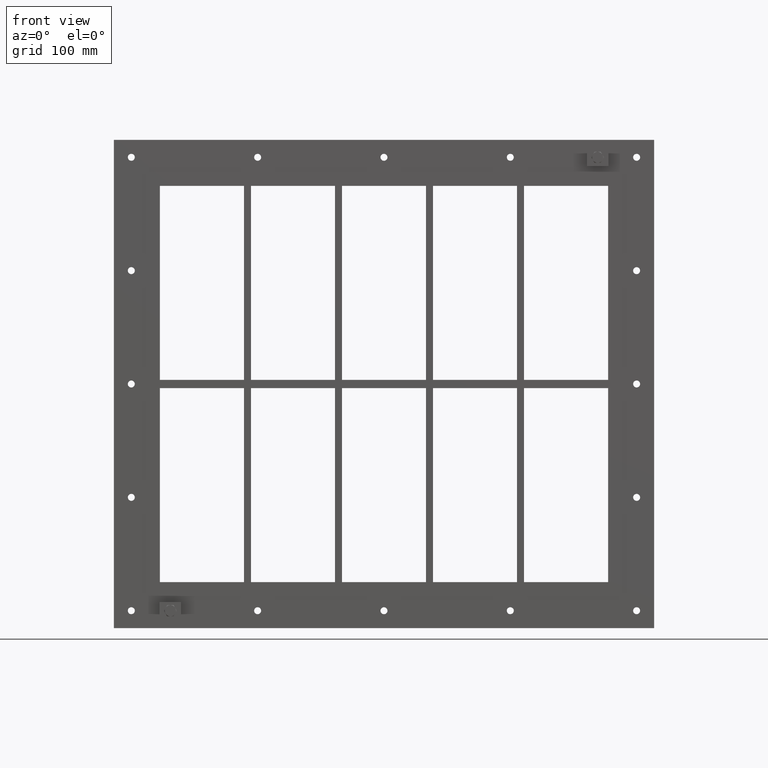
[diagram: clean part render]
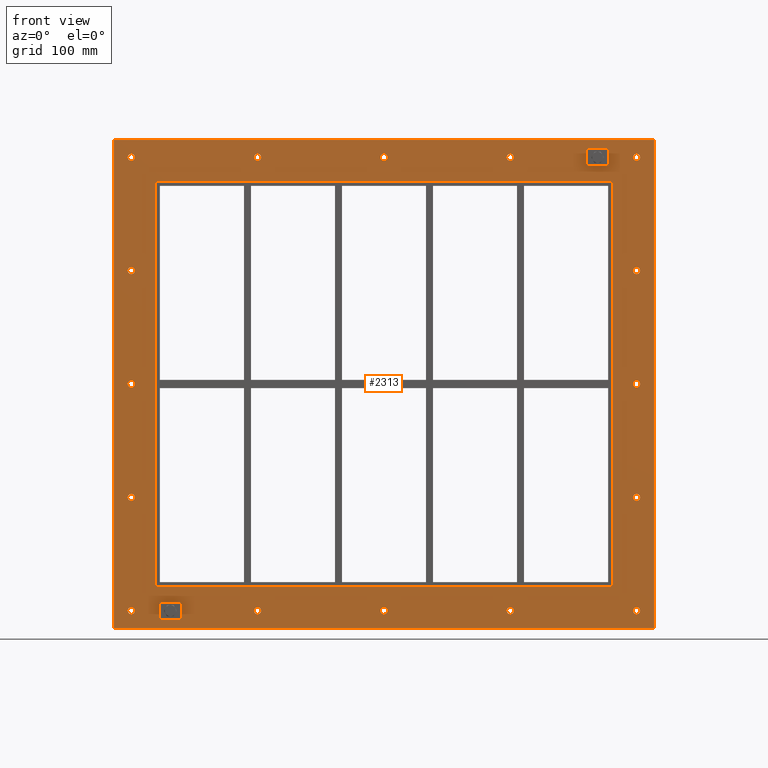
[diagram: same view with one face highlighted and labeled with its STEP entity id]
A machine part, front view. The second image highlights one B-rep face of the part: STEP entity #2313.
In plain terms, the highlighted planar face has unit normal (0, 1, 0).
Its self-contained STEP definition (entity closure, byte-faithful):
#84=CARTESIAN_POINT('',(-357.25000000000034,0.0,-324.99999999999994));
#85=VERTEX_POINT('',#84);
#86=CARTESIAN_POINT('',(-362.25000000000034,0.0,-324.99999999999994));
#87=DIRECTION('',(0.0,1.0,0.0));
#88=DIRECTION('',(1.0,0.0,0.0));
#89=AXIS2_PLACEMENT_3D('',#86,#87,#88);
#90=CIRCLE('',#89,5.0);
#91=EDGE_CURVE('',#85,#85,#90,.T.);
#112=CARTESIAN_POINT('',(367.14999999999964,0.0,-162.49999999999994));
#113=VERTEX_POINT('',#112);
#114=CARTESIAN_POINT('',(362.14999999999964,0.0,-162.49999999999994));
#115=DIRECTION('',(0.0,1.0,0.0));
#116=DIRECTION('',(1.0,0.0,0.0));
#117=AXIS2_PLACEMENT_3D('',#114,#115,#116);
#118=CIRCLE('',#117,5.0);
#119=EDGE_CURVE('',#113,#113,#118,.T.);
#140=CARTESIAN_POINT('',(-357.25000000000034,0.0,-162.49999999999994));
#141=VERTEX_POINT('',#140);
#142=CARTESIAN_POINT('',(-362.25000000000034,0.0,-162.49999999999994));
#143=DIRECTION('',(0.0,1.0,0.0));
#144=DIRECTION('',(1.0,0.0,0.0));
#145=AXIS2_PLACEMENT_3D('',#142,#143,#144);
#146=CIRCLE('',#145,5.0);
#147=EDGE_CURVE('',#141,#141,#146,.T.);
#168=CARTESIAN_POINT('',(367.14999999999964,0.0,7.105427E-014));
#169=VERTEX_POINT('',#168);
#170=CARTESIAN_POINT('',(362.14999999999964,0.0,7.105427E-014));
#171=DIRECTION('',(0.0,1.0,0.0));
#172=DIRECTION('',(1.0,0.0,0.0));
#173=AXIS2_PLACEMENT_3D('',#170,#171,#172);
#174=CIRCLE('',#173,5.0);
#175=EDGE_CURVE('',#169,#169,#174,.T.);
#196=CARTESIAN_POINT('',(-357.25000000000034,0.0,7.105427E-014));
#197=VERTEX_POINT('',#196);
#198=CARTESIAN_POINT('',(-362.25000000000034,0.0,7.105427E-014));
#199=DIRECTION('',(0.0,1.0,0.0));
#200=DIRECTION('',(1.0,0.0,0.0));
#201=AXIS2_PLACEMENT_3D('',#198,#199,#200);
#202=CIRCLE('',#201,5.0);
#203=EDGE_CURVE('',#197,#197,#202,.T.);
#224=CARTESIAN_POINT('',(367.14999999999964,0.0,162.50000000000006));
#225=VERTEX_POINT('',#224);
#226=CARTESIAN_POINT('',(362.14999999999964,0.0,162.50000000000006));
#227=DIRECTION('',(0.0,1.0,0.0));
#228=DIRECTION('',(1.0,0.0,0.0));
#229=AXIS2_PLACEMENT_3D('',#226,#227,#228);
#230=CIRCLE('',#229,5.0);
#231=EDGE_CURVE('',#225,#225,#230,.T.);
#252=CARTESIAN_POINT('',(-357.25000000000034,0.0,162.50000000000006));
#253=VERTEX_POINT('',#252);
#254=CARTESIAN_POINT('',(-362.25000000000034,0.0,162.50000000000006));
#255=DIRECTION('',(0.0,1.0,0.0));
#256=DIRECTION('',(1.0,0.0,0.0));
#257=AXIS2_PLACEMENT_3D('',#254,#255,#256);
#258=CIRCLE('',#257,5.0);
#259=EDGE_CURVE('',#253,#253,#258,.T.);
#280=CARTESIAN_POINT('',(-176.15000000000038,0.0,325.00000000000006));
#281=VERTEX_POINT('',#280);
#282=CARTESIAN_POINT('',(-181.15000000000038,0.0,325.00000000000006));
#283=DIRECTION('',(0.0,1.0,0.0));
#284=DIRECTION('',(1.0,0.0,0.0));
#285=AXIS2_PLACEMENT_3D('',#282,#283,#284);
#286=CIRCLE('',#285,5.0);
#287=EDGE_CURVE('',#281,#281,#286,.T.);
#308=CARTESIAN_POINT('',(-176.15000000000038,0.0,-324.99999999999994));
#309=VERTEX_POINT('',#308);
#310=CARTESIAN_POINT('',(-181.15000000000038,0.0,-324.99999999999994));
#311=DIRECTION('',(0.0,1.0,0.0));
#312=DIRECTION('',(1.0,0.0,0.0));
#313=AXIS2_PLACEMENT_3D('',#310,#311,#312);
#314=CIRCLE('',#313,5.0);
#315=EDGE_CURVE('',#309,#309,#314,.T.);
#336=CARTESIAN_POINT('',(4.949999999999619,0.0,325.00000000000006));
#337=VERTEX_POINT('',#336);
#338=CARTESIAN_POINT('',(-0.050000000000381,0.0,325.00000000000006));
#339=DIRECTION('',(0.0,1.0,0.0));
#340=DIRECTION('',(1.0,0.0,0.0));
#341=AXIS2_PLACEMENT_3D('',#338,#339,#340);
#342=CIRCLE('',#341,5.0);
#343=EDGE_CURVE('',#337,#337,#342,.T.);
#364=CARTESIAN_POINT('',(4.949999999999619,0.0,-324.99999999999994));
#365=VERTEX_POINT('',#364);
#366=CARTESIAN_POINT('',(-0.050000000000381,0.0,-324.99999999999994));
#367=DIRECTION('',(0.0,1.0,0.0));
#368=DIRECTION('',(1.0,0.0,0.0));
#369=AXIS2_PLACEMENT_3D('',#366,#367,#368);
#370=CIRCLE('',#369,5.0);
#371=EDGE_CURVE('',#365,#365,#370,.T.);
#392=CARTESIAN_POINT('',(186.04999999999961,0.0,325.00000000000006));
#393=VERTEX_POINT('',#392);
#394=CARTESIAN_POINT('',(181.04999999999961,0.0,325.00000000000006));
#395=DIRECTION('',(0.0,1.0,0.0));
#396=DIRECTION('',(1.0,0.0,0.0));
#397=AXIS2_PLACEMENT_3D('',#394,#395,#396);
#398=CIRCLE('',#397,5.0);
#399=EDGE_CURVE('',#393,#393,#398,.T.);
#420=CARTESIAN_POINT('',(186.04999999999961,0.0,-324.99999999999994));
#421=VERTEX_POINT('',#420);
#422=CARTESIAN_POINT('',(181.04999999999961,0.0,-324.99999999999994));
#423=DIRECTION('',(0.0,1.0,0.0));
#424=DIRECTION('',(1.0,0.0,0.0));
#425=AXIS2_PLACEMENT_3D('',#422,#423,#424);
#426=CIRCLE('',#425,5.0);
#427=EDGE_CURVE('',#421,#421,#426,.T.);
#448=CARTESIAN_POINT('',(367.14999999999964,0.0,-324.99999999999994));
#449=VERTEX_POINT('',#448);
#450=CARTESIAN_POINT('',(362.14999999999964,0.0,-324.99999999999994));
#451=DIRECTION('',(0.0,1.0,0.0));
#452=DIRECTION('',(1.0,0.0,0.0));
#453=AXIS2_PLACEMENT_3D('',#450,#451,#452);
#454=CIRCLE('',#453,5.0);
#455=EDGE_CURVE('',#449,#449,#454,.T.);
#476=CARTESIAN_POINT('',(-357.25000000000034,0.0,325.00000000000006));
#477=VERTEX_POINT('',#476);
#478=CARTESIAN_POINT('',(-362.25000000000034,0.0,325.00000000000006));
#479=DIRECTION('',(0.0,1.0,0.0));
#480=DIRECTION('',(1.0,0.0,0.0));
#481=AXIS2_PLACEMENT_3D('',#478,#479,#480);
#482=CIRCLE('',#481,5.0);
#483=EDGE_CURVE('',#477,#477,#482,.T.);
#504=CARTESIAN_POINT('',(367.14999999999964,0.0,325.00000000000006));
#505=VERTEX_POINT('',#504);
#506=CARTESIAN_POINT('',(362.14999999999964,0.0,325.00000000000006));
#507=DIRECTION('',(0.0,1.0,0.0));
#508=DIRECTION('',(1.0,0.0,0.0));
#509=AXIS2_PLACEMENT_3D('',#506,#507,#508);
#510=CIRCLE('',#509,5.0);
#511=EDGE_CURVE('',#505,#505,#510,.T.);
#2156=CARTESIAN_POINT('',(-3.469588E-014,0.0,0.0));
#2157=DIRECTION('',(0.0,1.0,0.0));
#2158=DIRECTION('',(0.0,0.0,1.0));
#2159=AXIS2_PLACEMENT_3D('',#2156,#2157,#2158);
#2160=PLANE('',#2159);
#2161=CARTESIAN_POINT('',(-387.25000000000023,0.0,349.99999999999994));
#2162=VERTEX_POINT('',#2161);
#2163=CARTESIAN_POINT('',(387.25000000000017,0.0,349.99999999999994));
#2164=VERTEX_POINT('',#2163);
#2165=CARTESIAN_POINT('',(-387.25000000000023,0.0,349.99999999999994));
#2166=DIRECTION('',(1.0,0.0,0.0));
#2167=VECTOR('',#2166,774.50000000000045);
#2168=LINE('',#2165,#2167);
#2169=EDGE_CURVE('',#2162,#2164,#2168,.T.);
#2170=ORIENTED_EDGE('',*,*,#2169,.F.);
#2171=CARTESIAN_POINT('',(-387.25000000000023,0.0,-349.99999999999994));
#2172=VERTEX_POINT('',#2171);
#2173=CARTESIAN_POINT('',(-387.25000000000023,0.0,-349.99999999999994));
#2174=DIRECTION('',(0.0,0.0,1.0));
#2175=VECTOR('',#2174,699.99999999999989);
#2176=LINE('',#2173,#2175);
#2177=EDGE_CURVE('',#2172,#2162,#2176,.T.);
#2178=ORIENTED_EDGE('',*,*,#2177,.F.);
#2179=CARTESIAN_POINT('',(387.25000000000017,0.0,-349.99999999999994));
#2180=VERTEX_POINT('',#2179);
#2181=CARTESIAN_POINT('',(387.25000000000017,0.0,-349.99999999999994));
#2182=DIRECTION('',(-1.0,0.0,0.0));
#2183=VECTOR('',#2182,774.50000000000045);
#2184=LINE('',#2181,#2183);
#2185=EDGE_CURVE('',#2180,#2172,#2184,.T.);
#2186=ORIENTED_EDGE('',*,*,#2185,.F.);
#2187=CARTESIAN_POINT('',(387.25000000000017,0.0,349.99999999999994));
#2188=DIRECTION('',(0.0,0.0,-1.0));
#2189=VECTOR('',#2188,699.99999999999989);
#2190=LINE('',#2187,#2189);
#2191=EDGE_CURVE('',#2164,#2180,#2190,.T.);
#2192=ORIENTED_EDGE('',*,*,#2191,.F.);
#2193=EDGE_LOOP('',(#2170,#2178,#2186,#2192));
#2194=FACE_OUTER_BOUND('',#2193,.T.);
#2195=ORIENTED_EDGE('',*,*,#91,.T.);
#2196=EDGE_LOOP('',(#2195));
#2197=FACE_BOUND('',#2196,.T.);
#2198=ORIENTED_EDGE('',*,*,#119,.T.);
#2199=EDGE_LOOP('',(#2198));
#2200=FACE_BOUND('',#2199,.T.);
#2201=ORIENTED_EDGE('',*,*,#147,.T.);
#2202=EDGE_LOOP('',(#2201));
#2203=FACE_BOUND('',#2202,.T.);
#2204=ORIENTED_EDGE('',*,*,#175,.T.);
#2205=EDGE_LOOP('',(#2204));
#2206=FACE_BOUND('',#2205,.T.);
#2207=ORIENTED_EDGE('',*,*,#203,.T.);
#2208=EDGE_LOOP('',(#2207));
#2209=FACE_BOUND('',#2208,.T.);
#2210=ORIENTED_EDGE('',*,*,#231,.T.);
#2211=EDGE_LOOP('',(#2210));
#2212=FACE_BOUND('',#2211,.T.);
#2213=ORIENTED_EDGE('',*,*,#259,.T.);
#2214=EDGE_LOOP('',(#2213));
#2215=FACE_BOUND('',#2214,.T.);
#2216=ORIENTED_EDGE('',*,*,#287,.T.);
#2217=EDGE_LOOP('',(#2216));
#2218=FACE_BOUND('',#2217,.T.);
#2219=ORIENTED_EDGE('',*,*,#315,.T.);
#2220=EDGE_LOOP('',(#2219));
#2221=FACE_BOUND('',#2220,.T.);
#2222=ORIENTED_EDGE('',*,*,#343,.T.);
#2223=EDGE_LOOP('',(#2222));
#2224=FACE_BOUND('',#2223,.T.);
#2225=ORIENTED_EDGE('',*,*,#371,.T.);
#2226=EDGE_LOOP('',(#2225));
#2227=FACE_BOUND('',#2226,.T.);
#2228=ORIENTED_EDGE('',*,*,#399,.T.);
#2229=EDGE_LOOP('',(#2228));
#2230=FACE_BOUND('',#2229,.T.);
#2231=ORIENTED_EDGE('',*,*,#427,.T.);
#2232=EDGE_LOOP('',(#2231));
#2233=FACE_BOUND('',#2232,.T.);
#2234=ORIENTED_EDGE('',*,*,#455,.T.);
#2235=EDGE_LOOP('',(#2234));
#2236=FACE_BOUND('',#2235,.T.);
#2237=ORIENTED_EDGE('',*,*,#483,.T.);
#2238=EDGE_LOOP('',(#2237));
#2239=FACE_BOUND('',#2238,.T.);
#2240=ORIENTED_EDGE('',*,*,#511,.T.);
#2241=EDGE_LOOP('',(#2240));
#2242=FACE_BOUND('',#2241,.T.);
#2243=CARTESIAN_POINT('',(-325.25,0.0,290.0));
#2244=VERTEX_POINT('',#2243);
#2245=CARTESIAN_POINT('',(-327.25,0.0,288.00000000000006));
#2246=VERTEX_POINT('',#2245);
#2247=CARTESIAN_POINT('',(-325.25,0.0,288.00000000000006));
#2248=DIRECTION('',(0.0,-1.0,0.0));
#2249=DIRECTION('',(-0.70710678118656,0.0,0.707106781186535));
#2250=AXIS2_PLACEMENT_3D('',#2247,#2248,#2249);
#2251=CIRCLE('',#2250,2.0);
#2252=EDGE_CURVE('',#2244,#2246,#2251,.T.);
#2253=ORIENTED_EDGE('',*,*,#2252,.F.);
#2254=CARTESIAN_POINT('',(325.25,0.0,290.0));
#2255=VERTEX_POINT('',#2254);
#2256=CARTESIAN_POINT('',(325.25,0.0,290.0));
#2257=DIRECTION('',(-1.0,0.0,0.0));
#2258=VECTOR('',#2257,650.5);
#2259=LINE('',#2256,#2258);
#2260=EDGE_CURVE('',#2255,#2244,#2259,.T.);
#2261=ORIENTED_EDGE('',*,*,#2260,.F.);
#2262=CARTESIAN_POINT('',(327.25,0.0,288.0));
#2263=VERTEX_POINT('',#2262);
#2264=CARTESIAN_POINT('',(325.25,0.0,288.0));
#2265=DIRECTION('',(0.0,-1.0,0.0));
#2266=DIRECTION('',(0.70710678118656,0.0,0.707106781186535));
#2267=AXIS2_PLACEMENT_3D('',#2264,#2265,#2266);
#2268=CIRCLE('',#2267,2.0);
#2269=EDGE_CURVE('',#2263,#2255,#2268,.T.);
#2270=ORIENTED_EDGE('',*,*,#2269,.F.);
#2271=CARTESIAN_POINT('',(327.25,0.0,-288.00000000000011));
#2272=VERTEX_POINT('',#2271);
#2273=CARTESIAN_POINT('',(327.25,0.0,-288.00000000000011));
#2274=DIRECTION('',(0.0,0.0,1.0));
#2275=VECTOR('',#2274,576.00000000000011);
#2276=LINE('',#2273,#2275);
#2277=EDGE_CURVE('',#2272,#2263,#2276,.T.);
#2278=ORIENTED_EDGE('',*,*,#2277,.F.);
#2279=CARTESIAN_POINT('',(325.25,0.0,-290.00000000000006));
#2280=VERTEX_POINT('',#2279);
#2281=CARTESIAN_POINT('',(325.25,0.0,-288.00000000000011));
#2282=DIRECTION('',(0.0,-1.0,0.0));
#2283=DIRECTION('',(0.70710678118656,0.0,-0.707106781186535));
#2284=AXIS2_PLACEMENT_3D('',#2281,#2282,#2283);
#2285=CIRCLE('',#2284,2.0);
#2286=EDGE_CURVE('',#2280,#2272,#2285,.T.);
#2287=ORIENTED_EDGE('',*,*,#2286,.F.);
#2288=CARTESIAN_POINT('',(-325.25,0.0,-290.00000000000006));
#2289=VERTEX_POINT('',#2288);
#2290=CARTESIAN_POINT('',(-325.25,0.0,-290.00000000000006));
#2291=DIRECTION('',(1.0,0.0,0.0));
#2292=VECTOR('',#2291,650.5);
#2293=LINE('',#2290,#2292);
#2294=EDGE_CURVE('',#2289,#2280,#2293,.T.);
#2295=ORIENTED_EDGE('',*,*,#2294,.F.);
#2296=CARTESIAN_POINT('',(-327.25,0.0,-288.00000000000006));
#2297=VERTEX_POINT('',#2296);
#2298=CARTESIAN_POINT('',(-325.25,0.0,-288.00000000000006));
#2299=DIRECTION('',(0.0,-1.0,0.0));
#2300=DIRECTION('',(-0.707106781186548,0.0,-0.707106781186548));
#2301=AXIS2_PLACEMENT_3D('',#2298,#2299,#2300);
#2302=CIRCLE('',#2301,2.0);
#2303=EDGE_CURVE('',#2297,#2289,#2302,.T.);
#2304=ORIENTED_EDGE('',*,*,#2303,.F.);
#2305=CARTESIAN_POINT('',(-327.25,0.0,288.00000000000011));
#2306=DIRECTION('',(0.0,0.0,-1.0));
#2307=VECTOR('',#2306,576.00000000000011);
#2308=LINE('',#2305,#2307);
#2309=EDGE_CURVE('',#2246,#2297,#2308,.T.);
#2310=ORIENTED_EDGE('',*,*,#2309,.F.);
#2311=EDGE_LOOP('',(#2253,#2261,#2270,#2278,#2287,#2295,#2304,#2310));
#2312=FACE_BOUND('',#2311,.T.);
#2313=ADVANCED_FACE('',(#2194,#2197,#2200,#2203,#2206,#2209,#2212,#2215,#2218,#2221,#2224,#2227,#2230,#2233,#2236,#2239,#2242,#2312),#2160,.F.);